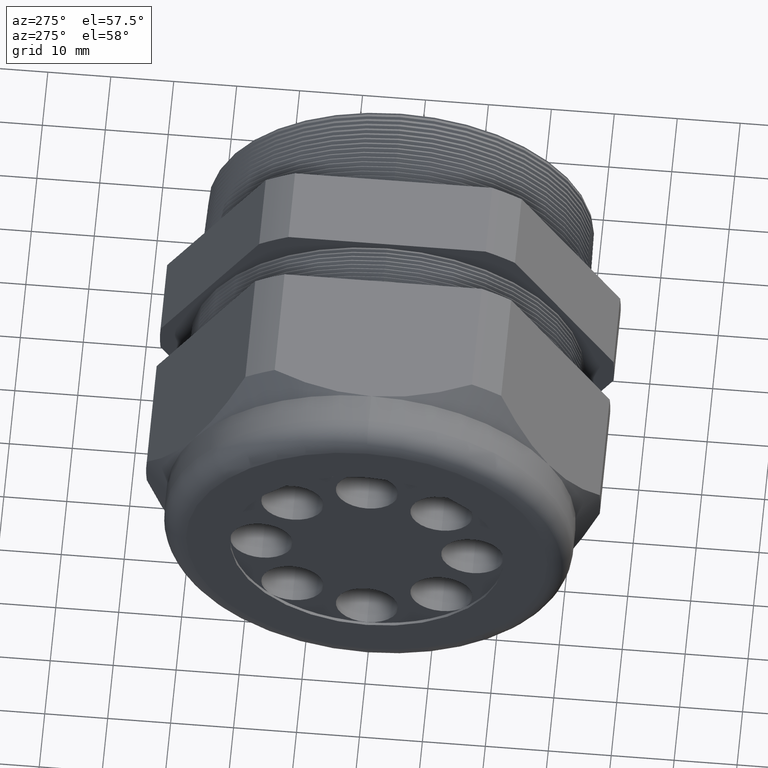
[diagram: clean part render]
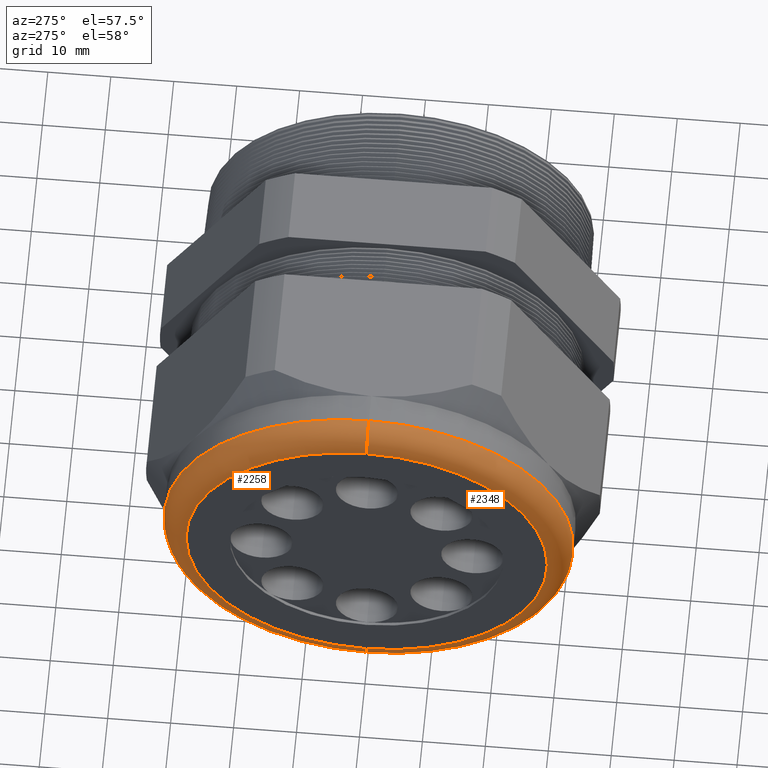
[diagram: same view with one multi-face feature highlighted, each face labeled with its STEP entity id]
A machine part, auxiliary view. The highlighted faces form ONE feature: a constant-radius fillet chain: 2 tangent blend faces with common blend radius 3.81 mm. The faces share edges in the B-rep.
Their STEP definitions:
[1] entity #2348 (Torus):
#465 = DIRECTION ( 'NONE',  ( 0.0000000000000000000, 0.0000000000000000000, 1.000000000000000000 ) ) ;
#466 = DIRECTION ( 'NONE',  ( -1.000000000000000000, 0.0000000000000000000, 0.0000000000000000000 ) ) ;
#467 = AXIS2_PLACEMENT_3D ( 'NONE', #474, #466, #465 ) ;
#468 = CIRCLE ( 'NONE', #467, 1.129999999999999900 ) ;
#474 = CARTESIAN_POINT ( 'NONE',  ( -2.239999999999999800, 0.0000000000000000000, 0.0000000000000000000 ) ) ;
#499 = DIRECTION ( 'NONE',  ( 0.0000000000000000000, 0.0000000000000000000, 1.000000000000000000 ) ) ;
#500 = DIRECTION ( 'NONE',  ( 1.000000000000000000, 0.0000000000000000000, 0.0000000000000000000 ) ) ;
#501 = CARTESIAN_POINT ( 'NONE',  ( -2.089999999999999400, 0.0000000000000000000, 0.0000000000000000000 ) ) ;
#502 = AXIS2_PLACEMENT_3D ( 'NONE', #501, #500, #499 ) ;
#503 = CIRCLE ( 'NONE', #502, 1.280000000000000000 ) ;
#869 = DIRECTION ( 'NONE',  ( 0.0000000000000000000, 0.0000000000000000000, -1.000000000000000000 ) ) ;
#870 = DIRECTION ( 'NONE',  ( 0.0000000000000000000, -1.000000000000000000, 0.0000000000000000000 ) ) ;
#871 = AXIS2_PLACEMENT_3D ( 'NONE', #876, #870, #869 ) ;
#872 = CIRCLE ( 'NONE', #871, 0.1500000000000000500 ) ;
#876 = CARTESIAN_POINT ( 'NONE',  ( -2.089999999999999400, 0.0000000000000000000, 1.129999999999999900 ) ) ;
#969 = CARTESIAN_POINT ( 'NONE',  ( -2.089999999999999400, 1.567547902908612300E-016, 1.280000000000000000 ) ) ;
#985 = CARTESIAN_POINT ( 'NONE',  ( -2.239999999999999800, 1.475699392972560400E-016, -1.129999999999999900 ) ) ;
#992 = CARTESIAN_POINT ( 'NONE',  ( -2.239999999999999800, 0.0000000000000000000, 1.129999999999999900 ) ) ;
#1006 = CARTESIAN_POINT ( 'NONE',  ( -2.089999999999999400, 0.0000000000000000000, -1.280000000000000000 ) ) ;
#1013 = DIRECTION ( 'NONE',  ( 0.0000000000000000000, -1.224646799147352500E-016, 1.000000000000000000 ) ) ;
#1014 = DIRECTION ( 'NONE',  ( 0.0000000000000000000, 1.000000000000000000, 1.224646799147353200E-016 ) ) ;
#1015 = AXIS2_PLACEMENT_3D ( 'NONE', #1020, #1014, #1013 ) ;
#1016 = CIRCLE ( 'NONE', #1015, 0.1500000000000000500 ) ;
#1020 = CARTESIAN_POINT ( 'NONE',  ( -2.089999999999999400, 1.383850883036509000E-016, -1.129999999999999900 ) ) ;
#2231 = ORIENTED_EDGE ( 'NONE', *, *, #3805, .F. ) ;
#2243 = ORIENTED_EDGE ( 'NONE', *, *, #4068, .F. ) ;
#2282 = ORIENTED_EDGE ( 'NONE', *, *, #4014, .T. ) ;
#2286 = ORIENTED_EDGE ( 'NONE', *, *, #3783, .F. ) ;
#2343 = EDGE_LOOP ( 'NONE', ( #2243, #2231, #2282, #2286 ) ) ;
#2348 = ADVANCED_FACE ( 'NONE', ( #5694 ), #5753, .T. ) ;
#3783 = EDGE_CURVE ( 'NONE', #4051, #4044, #468, .T. ) ;
#3805 = EDGE_CURVE ( 'NONE', #4059, #4071, #503, .T. ) ;
#4014 = EDGE_CURVE ( 'NONE', #4059, #4044, #872, .T. ) ;
#4044 = VERTEX_POINT ( 'NONE', #992 ) ;
#4051 = VERTEX_POINT ( 'NONE', #985 ) ;
#4059 = VERTEX_POINT ( 'NONE', #969 ) ;
#4068 = EDGE_CURVE ( 'NONE', #4071, #4051, #1016, .T. ) ;
#4071 = VERTEX_POINT ( 'NONE', #1006 ) ;
#5694 = FACE_OUTER_BOUND ( 'NONE', #2343, .T. ) ;
#5749 = DIRECTION ( 'NONE',  ( 0.0000000000000000000, 0.0000000000000000000, 1.000000000000000000 ) ) ;
#5750 = DIRECTION ( 'NONE',  ( -1.000000000000000000, 0.0000000000000000000, 0.0000000000000000000 ) ) ;
#5751 = CARTESIAN_POINT ( 'NONE',  ( -2.089999999999999400, 0.0000000000000000000, 0.0000000000000000000 ) ) ;
#5752 = AXIS2_PLACEMENT_3D ( 'NONE', #5751, #5750, #5749 ) ;
#5753 = TOROIDAL_SURFACE ( 'NONE', #5752, 1.129999999999999900, 0.1499999999999999900 ) ;
[2] entity #2258 (Torus):
#869 = DIRECTION ( 'NONE',  ( 0.0000000000000000000, 0.0000000000000000000, -1.000000000000000000 ) ) ;
#870 = DIRECTION ( 'NONE',  ( 0.0000000000000000000, -1.000000000000000000, 0.0000000000000000000 ) ) ;
#871 = AXIS2_PLACEMENT_3D ( 'NONE', #876, #870, #869 ) ;
#872 = CIRCLE ( 'NONE', #871, 0.1500000000000000500 ) ;
#876 = CARTESIAN_POINT ( 'NONE',  ( -2.089999999999999400, 0.0000000000000000000, 1.129999999999999900 ) ) ;
#929 = DIRECTION ( 'NONE',  ( 0.0000000000000000000, 0.0000000000000000000, 1.000000000000000000 ) ) ;
#930 = DIRECTION ( 'NONE',  ( -1.000000000000000000, 0.0000000000000000000, 0.0000000000000000000 ) ) ;
#931 = CARTESIAN_POINT ( 'NONE',  ( -2.239999999999999800, 0.0000000000000000000, 0.0000000000000000000 ) ) ;
#932 = AXIS2_PLACEMENT_3D ( 'NONE', #931, #930, #929 ) ;
#933 = CIRCLE ( 'NONE', #932, 1.129999999999999900 ) ;
#969 = CARTESIAN_POINT ( 'NONE',  ( -2.089999999999999400, 1.567547902908612300E-016, 1.280000000000000000 ) ) ;
#985 = CARTESIAN_POINT ( 'NONE',  ( -2.239999999999999800, 1.475699392972560400E-016, -1.129999999999999900 ) ) ;
#992 = CARTESIAN_POINT ( 'NONE',  ( -2.239999999999999800, 0.0000000000000000000, 1.129999999999999900 ) ) ;
#1006 = CARTESIAN_POINT ( 'NONE',  ( -2.089999999999999400, 0.0000000000000000000, -1.280000000000000000 ) ) ;
#1013 = DIRECTION ( 'NONE',  ( 0.0000000000000000000, -1.224646799147352500E-016, 1.000000000000000000 ) ) ;
#1014 = DIRECTION ( 'NONE',  ( 0.0000000000000000000, 1.000000000000000000, 1.224646799147353200E-016 ) ) ;
#1015 = AXIS2_PLACEMENT_3D ( 'NONE', #1020, #1014, #1013 ) ;
#1016 = CIRCLE ( 'NONE', #1015, 0.1500000000000000500 ) ;
#1020 = CARTESIAN_POINT ( 'NONE',  ( -2.089999999999999400, 1.383850883036509000E-016, -1.129999999999999900 ) ) ;
#2249 = EDGE_CURVE ( 'NONE', #4071, #4059, #5571, .T. ) ;
#2251 = ORIENTED_EDGE ( 'NONE', *, *, #2249, .F. ) ;
#2254 = EDGE_LOOP ( 'NONE', ( #2251, #4069, #4049, #4021 ) ) ;
#2258 = ADVANCED_FACE ( 'NONE', ( #5560 ), #5559, .T. ) ;
#4014 = EDGE_CURVE ( 'NONE', #4059, #4044, #872, .T. ) ;
#4021 = ORIENTED_EDGE ( 'NONE', *, *, #4014, .F. ) ;
#4042 = EDGE_CURVE ( 'NONE', #4044, #4051, #933, .T. ) ;
#4044 = VERTEX_POINT ( 'NONE', #992 ) ;
#4049 = ORIENTED_EDGE ( 'NONE', *, *, #4042, .F. ) ;
#4051 = VERTEX_POINT ( 'NONE', #985 ) ;
#4059 = VERTEX_POINT ( 'NONE', #969 ) ;
#4068 = EDGE_CURVE ( 'NONE', #4071, #4051, #1016, .T. ) ;
#4069 = ORIENTED_EDGE ( 'NONE', *, *, #4068, .T. ) ;
#4071 = VERTEX_POINT ( 'NONE', #1006 ) ;
#5556 = DIRECTION ( 'NONE',  ( 0.0000000000000000000, 0.0000000000000000000, 1.000000000000000000 ) ) ;
#5557 = DIRECTION ( 'NONE',  ( -1.000000000000000000, 0.0000000000000000000, 0.0000000000000000000 ) ) ;
#5558 = AXIS2_PLACEMENT_3D ( 'NONE', #5565, #5557, #5556 ) ;
#5559 = TOROIDAL_SURFACE ( 'NONE', #5558, 1.129999999999999900, 0.1499999999999999900 ) ;
#5560 = FACE_OUTER_BOUND ( 'NONE', #2254, .T. ) ;
#5565 = CARTESIAN_POINT ( 'NONE',  ( -2.089999999999999400, 0.0000000000000000000, 0.0000000000000000000 ) ) ;
#5567 = DIRECTION ( 'NONE',  ( 0.0000000000000000000, 0.0000000000000000000, 1.000000000000000000 ) ) ;
#5568 = DIRECTION ( 'NONE',  ( 1.000000000000000000, 0.0000000000000000000, 0.0000000000000000000 ) ) ;
#5569 = CARTESIAN_POINT ( 'NONE',  ( -2.089999999999999400, 0.0000000000000000000, 0.0000000000000000000 ) ) ;
#5570 = AXIS2_PLACEMENT_3D ( 'NONE', #5569, #5568, #5567 ) ;
#5571 = CIRCLE ( 'NONE', #5570, 1.280000000000000000 ) ;